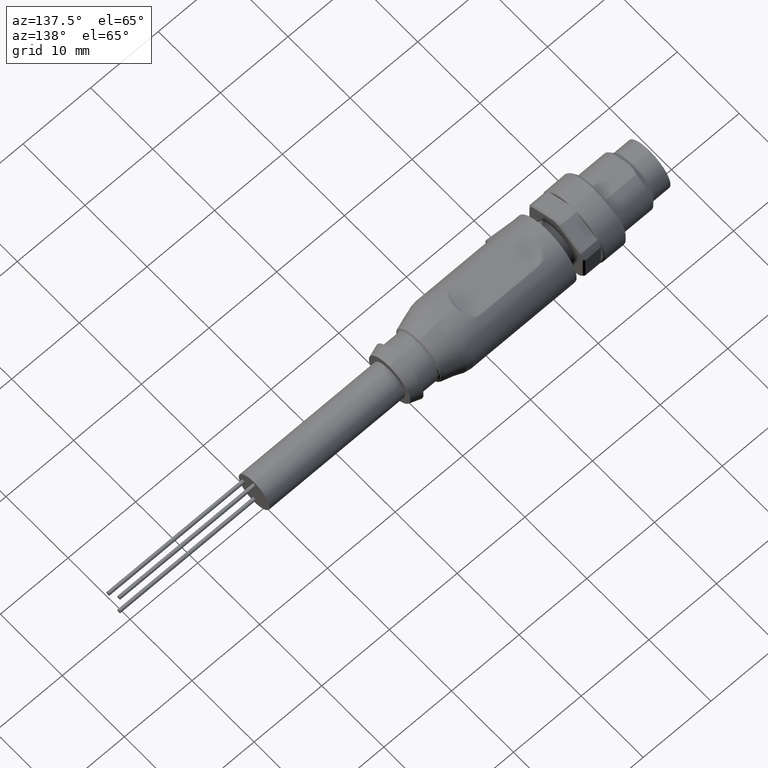
[diagram: clean part render]
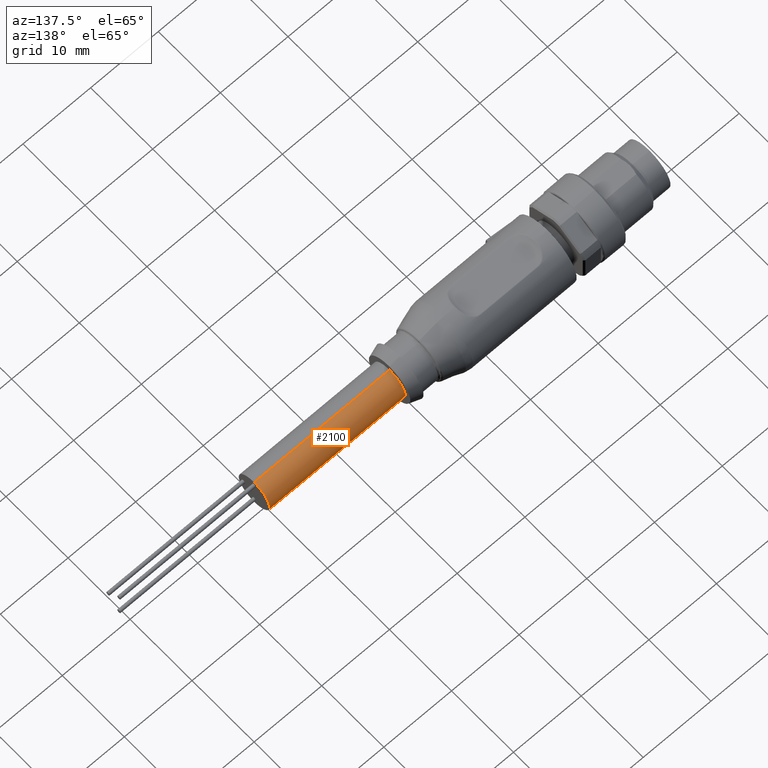
[diagram: same view with one face highlighted and labeled with its STEP entity id]
A machine part, auxiliary view. The second image highlights one B-rep face of the part: STEP entity #2100.
In plain terms, the highlighted cylindrical surface (edge-blend (fillet) strip) has radius 2.5 mm, axis along (1, 0, 0).
Its self-contained STEP definition (entity closure, byte-faithful):
#169 = CIRCLE ( 'NONE', #1518, 2.500000000000000000 ) ;
#170 = VECTOR ( 'NONE', #808, 1000.000000000000000 ) ;
#257 = DIRECTION ( 'NONE',  ( 0.0000000000000000000, 0.0000000000000000000, -1.000000000000000000 ) ) ;
#272 = CARTESIAN_POINT ( 'NONE',  ( 31.64999999999999900, 1.194123299786838500E-015, 2.500000000000000000 ) ) ;
#360 = DIRECTION ( 'NONE',  ( -1.000000000000000000, -0.0000000000000000000, -0.0000000000000000000 ) ) ;
#427 = VERTEX_POINT ( 'NONE', #2168 ) ;
#517 = ORIENTED_EDGE ( 'NONE', *, *, #621, .T. ) ;
#621 = EDGE_CURVE ( 'NONE', #1459, #427, #3299, .T. ) ;
#648 = VERTEX_POINT ( 'NONE', #3926 ) ;
#772 = CARTESIAN_POINT ( 'NONE',  ( 11.65000000000000000, 8.879616000000001400E-016, -2.500000000000000000 ) ) ;
#808 = DIRECTION ( 'NONE',  ( 1.000000000000000000, 0.0000000000000000000, 0.0000000000000000000 ) ) ;
#847 = DIRECTION ( 'NONE',  ( 1.000000000000000000, 0.0000000000000000000, 0.0000000000000000000 ) ) ;
#850 = LINE ( 'NONE', #1845, #1637 ) ;
#908 = CYLINDRICAL_SURFACE ( 'NONE', #3855, 2.500000000000000000 ) ;
#1245 = ORIENTED_EDGE ( 'NONE', *, *, #1833, .T. ) ;
#1459 = VERTEX_POINT ( 'NONE', #272 ) ;
#1518 = AXIS2_PLACEMENT_3D ( 'NONE', #2366, #360, #2692 ) ;
#1637 = VECTOR ( 'NONE', #847, 1000.000000000000000 ) ;
#1770 = CARTESIAN_POINT ( 'NONE',  ( 11.65000000000000000, 8.879616000000001400E-016, -2.500000000000000000 ) ) ;
#1833 = EDGE_CURVE ( 'NONE', #648, #1459, #850, .T. ) ;
#1845 = CARTESIAN_POINT ( 'NONE',  ( 11.65000000000000000, 1.194123299786838500E-015, 2.500000000000000000 ) ) ;
#1971 = LINE ( 'NONE', #772, #170 ) ;
#2091 = ORIENTED_EDGE ( 'NONE', *, *, #3980, .F. ) ;
#2100 = ADVANCED_FACE ( 'NONE', ( #3558 ), #908, .T. ) ;
#2168 = CARTESIAN_POINT ( 'NONE',  ( 31.64999999999999900, 8.879616000000001400E-016, -2.500000000000000000 ) ) ;
#2269 = DIRECTION ( 'NONE',  ( -1.000000000000000000, -0.0000000000000000000, -0.0000000000000000000 ) ) ;
#2366 = CARTESIAN_POINT ( 'NONE',  ( 11.65000000000000000, 8.879616000000001400E-016, 0.0000000000000000000 ) ) ;
#2464 = CARTESIAN_POINT ( 'NONE',  ( 11.65000000000000000, 8.879616000000001400E-016, 0.0000000000000000000 ) ) ;
#2692 = DIRECTION ( 'NONE',  ( 0.0000000000000000000, 0.0000000000000000000, -1.000000000000000000 ) ) ;
#2793 = DIRECTION ( 'NONE',  ( 1.000000000000000000, 0.0000000000000000000, 0.0000000000000000000 ) ) ;
#2864 = AXIS2_PLACEMENT_3D ( 'NONE', #4270, #2269, #257 ) ;
#3012 = EDGE_CURVE ( 'NONE', #648, #3089, #169, .T. ) ;
#3089 = VERTEX_POINT ( 'NONE', #1770 ) ;
#3299 = CIRCLE ( 'NONE', #2864, 2.500000000000000000 ) ;
#3334 = EDGE_LOOP ( 'NONE', ( #3373, #1245, #517, #2091 ) ) ;
#3373 = ORIENTED_EDGE ( 'NONE', *, *, #3012, .F. ) ;
#3558 = FACE_OUTER_BOUND ( 'NONE', #3334, .T. ) ;
#3809 = DIRECTION ( 'NONE',  ( 0.0000000000000000000, 0.0000000000000000000, -1.000000000000000000 ) ) ;
#3855 = AXIS2_PLACEMENT_3D ( 'NONE', #2464, #2793, #3809 ) ;
#3926 = CARTESIAN_POINT ( 'NONE',  ( 11.65000000000000000, 1.194123299786838500E-015, 2.500000000000000000 ) ) ;
#3980 = EDGE_CURVE ( 'NONE', #3089, #427, #1971, .T. ) ;
#4270 = CARTESIAN_POINT ( 'NONE',  ( 31.64999999999999900, 8.879616000000001400E-016, 0.0000000000000000000 ) ) ;